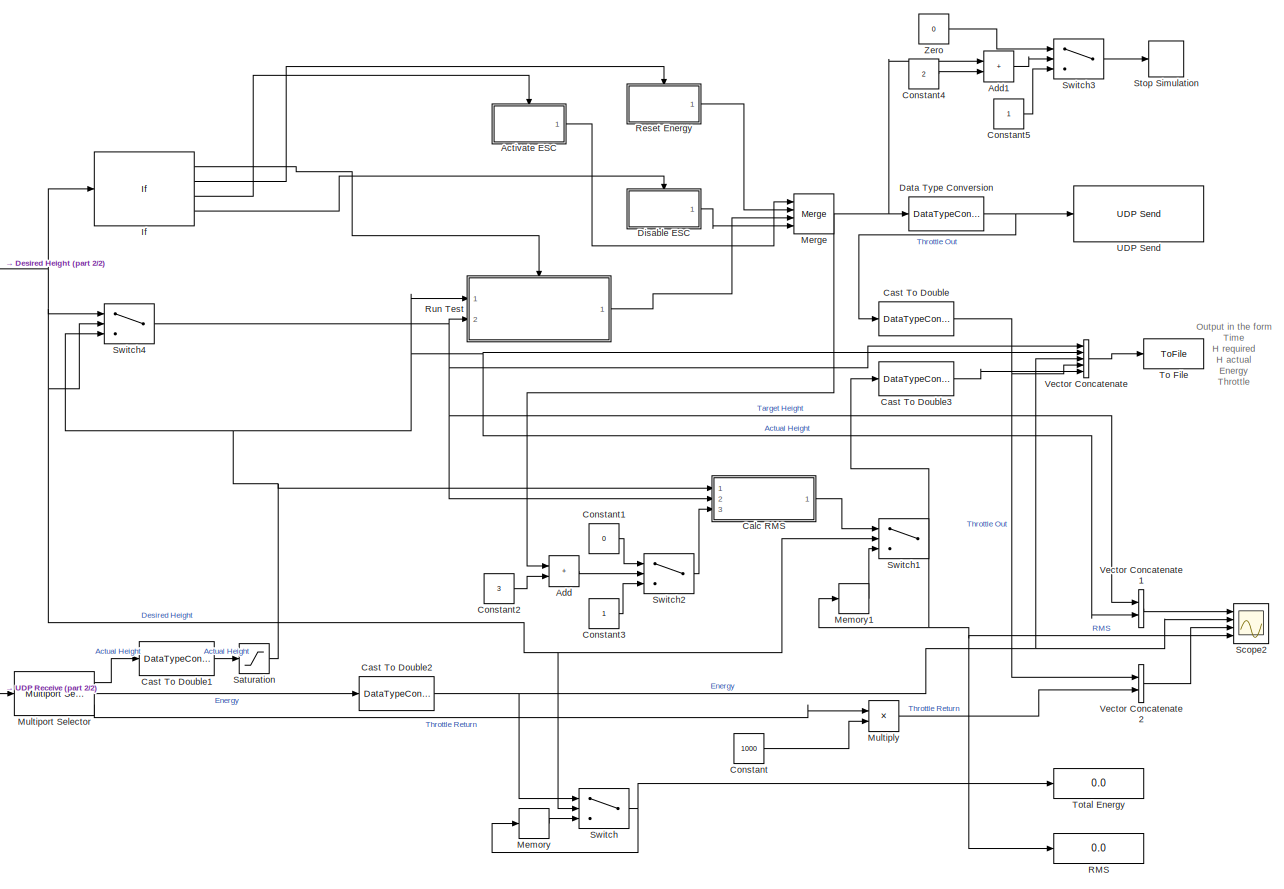
[diagram: root canvas - part 1/2, most of the canvas]
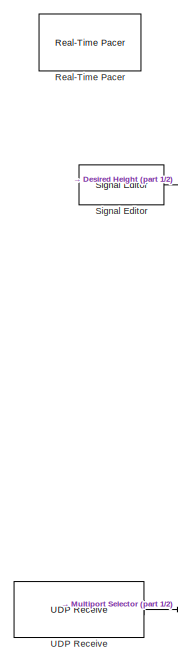
[diagram: root canvas - part 2/2, middle left region]
MODEL slx_79f4b417ced3
KIND model
CONFIG AbsTol = auto
CONFIG EnableMultiTasking = off
CONFIG FixedStep = auto
CONFIG MaxStep = auto
CONFIG MinStep = auto
CONFIG RelTol = 1e-3
CONFIG SampleTimeConstraint = Unconstrained
CONFIG SolverName = VariableStepAuto
CONFIG StartTime = 0.0
CONFIG StopTime = inf
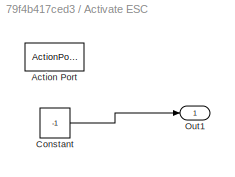
BLOCK [SubSystem] Activate ESC
  Ports = [0, 1, 0, 0, 0, 0, 0, 1]
  RequestExecContextInheritance = off
  TreatAsAtomicUnit = on
BLOCK [ActionPort] Activate ESC/Action Port
  ActionPortLabel = elseif { }
BLOCK [Constant] Activate ESC/Constant
  SampleTime = 0.05
  Value = -1
BLOCK [Outport] Activate ESC/Out1
  VectorParamsAs1DForOutWhenUnconnected = off
BLOCK [Sum] Add
  IconShape = rectangular
  Ports = [2, 1]
BLOCK [Sum] Add1
  IconShape = rectangular
  Ports = [2, 1]
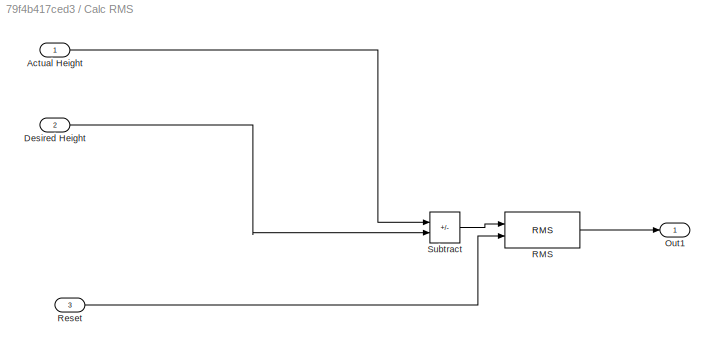
BLOCK [SubSystem] Calc RMS
  Ports = [3, 1]
  RequestExecContextInheritance = off
BLOCK [Inport] Calc RMS/Actual Height
BLOCK [Inport] Calc RMS/Desired Height
  Port = 2
BLOCK [Outport] Calc RMS/Out1
  VectorParamsAs1DForOutWhenUnconnected = off
BLOCK [Reference] Calc RMS/RMS  REF=dspstat3/RMS
  Ports = [2, 1]
  SourceBlock = dspstat3/RMS
  SourceProductBaseCode = DS
  SourceType = RMS
  UserDataPersistent = on
BLOCK [Inport] Calc RMS/Reset
  Port = 3
BLOCK [Sum] Calc RMS/Subtract
  IconShape = rectangular
  Inputs = +-
  Ports = [2, 1]
BLOCK [DataTypeConversion] Cast To Double
  OutDataTypeStr = double
  RndMeth = Floor
  SaturateOnIntegerOverflow = off
BLOCK [DataTypeConversion] Cast To Double1
  OutDataTypeStr = double
  RndMeth = Floor
  SaturateOnIntegerOverflow = off
BLOCK [DataTypeConversion] Cast To Double2
  OutDataTypeStr = double
  RndMeth = Floor
  SaturateOnIntegerOverflow = off
BLOCK [DataTypeConversion] Cast To Double3
  OutDataTypeStr = double
  RndMeth = Floor
  SaturateOnIntegerOverflow = off
BLOCK [Constant] Constant
  Value = 1000
BLOCK [Constant] Constant1
  Value = 0
BLOCK [Constant] Constant2
  Value = 3
BLOCK [Constant] Constant3
BLOCK [Constant] Constant4
  Value = 2
BLOCK [Constant] Constant5
BLOCK [DataTypeConversion] Data Type Conversion
  OutDataTypeStr = int32
  RndMeth = Floor
  SaturateOnIntegerOverflow = off
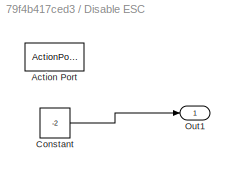
BLOCK [SubSystem] Disable ESC
  Ports = [0, 1, 0, 0, 0, 0, 0, 1]
  RequestExecContextInheritance = off
  TreatAsAtomicUnit = on
BLOCK [ActionPort] Disable ESC/Action Port
  ActionPortLabel = else { }
BLOCK [Constant] Disable ESC/Constant
  SampleTime = 0.05
  Value = -2
BLOCK [Outport] Disable ESC/Out1
  VectorParamsAs1DForOutWhenUnconnected = off
BLOCK [If] If
  ElseIfExpressions = u1 > -100 , u1>-200
  IfExpression = u1 >= 0
  Ports = [1, 4]
BLOCK [Memory] Memory
BLOCK [Memory] Memory1
BLOCK [Merge] Merge
  Inputs = 4
  Ports = [4, 1]
BLOCK [Product] Multiply
  Ports = [2, 1]
BLOCK [Reference] Multiport Selector  REF=dspindex/Multiport
Selector
  Ports = [1, 3]
  SourceBlock = dspindex/Multiport\nSelector
  SourceProductBaseCode = DS
  SourceType = Multiport Selector
BLOCK [Display] RMS
  Decimation = 1
  Ports = [1]
BLOCK [Reference] Real-Time Pacer  REF=realtime_pacer_lib/Real-Time Pacer
  Ports = []
  SourceBlock = realtime_pacer_lib/Real-Time Pacer
  SourceType = RealTime_Pacer
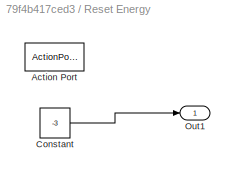
BLOCK [SubSystem] Reset Energy
  Ports = [0, 1, 0, 0, 0, 0, 0, 1]
  RequestExecContextInheritance = off
  TreatAsAtomicUnit = on
BLOCK [ActionPort] Reset Energy/Action Port
  ActionPortLabel = elseif { }
BLOCK [Constant] Reset Energy/Constant
  SampleTime = 0.05
  Value = -3
BLOCK [Outport] Reset Energy/Out1
  VectorParamsAs1DForOutWhenUnconnected = off
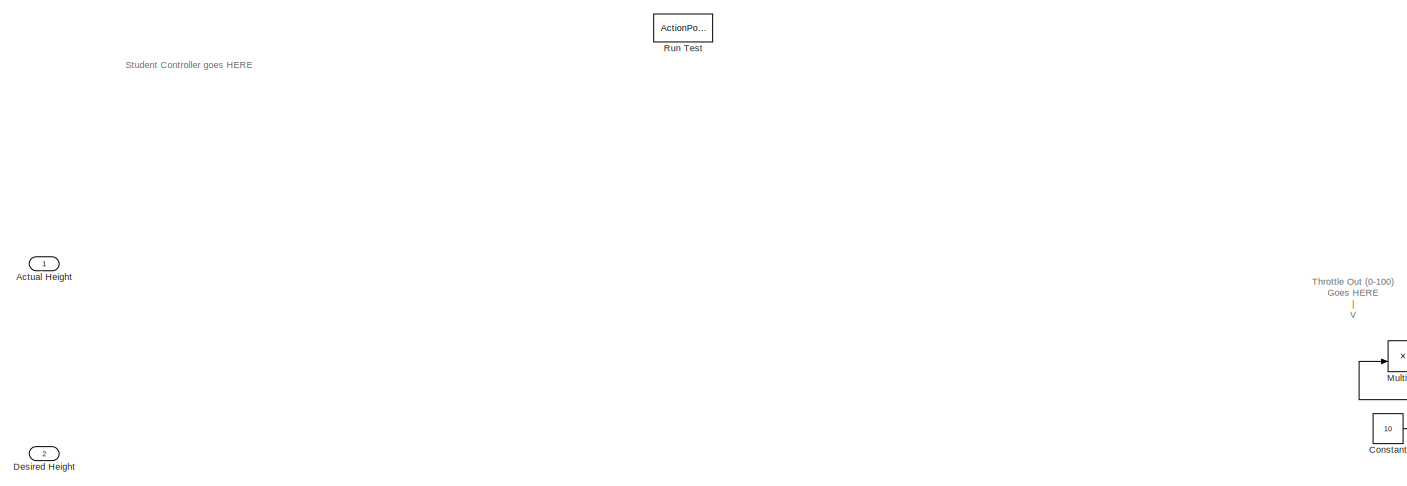
[diagram: Run Test - part 1/2, most of the canvas]
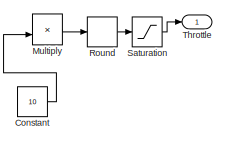
[diagram: Run Test - part 2/2, bottom right region]
BLOCK [SubSystem] Run Test
  Ports = [2, 1, 0, 0, 0, 0, 0, 1]
  RequestExecContextInheritance = off
  TreatAsAtomicUnit = on
BLOCK [Inport] Run Test/Actual Height
BLOCK [Constant] Run Test/Constant
  Value = 10
BLOCK [Inport] Run Test/Desired Height
  Port = 2
BLOCK [Product] Run Test/Multiply
  Ports = [2, 1]
BLOCK [Rounding] Run Test/Round
  Operator = round
BLOCK [ActionPort] Run Test/Run Test
  ActionPortLabel = if { }
BLOCK [Saturate] Run Test/Saturation
  LowerLimit = 0
  UpperLimit = 1000
BLOCK [Outport] Run Test/Throttle 
  VectorParamsAs1DForOutWhenUnconnected = off
BLOCK [Saturate] Saturation
  LowerLimit = 0.1
  UpperLimit = 1.7
BLOCK [Scope] Scope2
  Floating = off
  NumInputPorts = 4
  Ports = [4]
  ScopeSpecificationString = Simulink.scopes.TimeScopeBlockCfg('CurrentConfiguration', extmgr.ConfigurationSet(extmgr.Configuration('Core','General UI',true,'DisplayFullSourceName',true),extmgr.Configuration('Core','Source UI',true),extmgr.Configuration('Sources','WiredSimulink',true,'DataLoggingVariableName','ScopeData2'),extmgr.Configuration('Visuals','Time Domain',true,'SerializedDisplays',{struct('MinYLimReal','-0.1','Max...<+6029ch>
BLOCK [Reference] Signal Editor  REF=SignalEditorBlockLib/Signal Editor
  Ports = [0, 1]
  SourceBlock = SignalEditorBlockLib/Signal Editor
  SourceProductBaseCode = SL
  SourceType = SignalEditor
  UserDataPersistent = on
BLOCK [Stop] Stop Simulation
BLOCK [Switch] Switch
  InputSameDT = off
  SaturateOnIntegerOverflow = off
BLOCK [Switch] Switch1
  InputSameDT = off
  SaturateOnIntegerOverflow = off
BLOCK [Switch] Switch2
  Criteria = u2 ~= 0
  InputSameDT = off
  SaturateOnIntegerOverflow = off
BLOCK [Switch] Switch3
  Criteria = u2 ~= 0
  InputSameDT = off
  SaturateOnIntegerOverflow = off
  ZeroCross = off
BLOCK [Switch] Switch4
  InputSameDT = off
  SaturateOnIntegerOverflow = off
  Threshold = 0.25
BLOCK [ToFile] To File
  Filename = G1_test2.mat
  Ports = [1]
BLOCK [Display] Total Energy
  Decimation = 1
  Ports = [1]
BLOCK [Reference] UDP Receive  REF=instrumentlib/UDP Receive
  Ports = [0, 2]
  SourceBlock = instrumentlib/UDP Receive
  SourceProductBaseCode = IC
  SourceType = UDP Receive
BLOCK [Reference] UDP Send  REF=instrumentlib/UDP Send
  Ports = [1]
  SourceBlock = instrumentlib/UDP Send
  SourceProductBaseCode = IC
  SourceType = UDP Send
BLOCK [Concatenate] Vector Concatenate
  NumInputs = 5
  Ports = [5, 1]
BLOCK [Concatenate] Vector Concatenate1
  Ports = [2, 1]
BLOCK [Concatenate] Vector Concatenate2
  Ports = [2, 1]
BLOCK [Constant] Zero
  OutDataTypeStr = Inherit: Inherit via back propagation
  Value = 0
ANNOTATION (root): Output in the form Time H required H actual Energy Throttle RMS
ANNOTATION Run Test: Student Controller goes HERE
ANNOTATION Run Test: Throttle Out (0-100) Goes HERE | V
LINE Activate ESC/Constant:1 -> Activate ESC/Out1:1
LINE Activate ESC:1 -> Merge:1
LINE Add1:1 -> Switch3:2
LINE Add:1 -> Switch2:2
LINE Calc RMS/Actual Height:1 -> Calc RMS/Subtract:1
LINE Calc RMS/Desired Height:1 -> Calc RMS/Subtract:2
LINE Calc RMS/RMS:1 -> Calc RMS/Out1:1
LINE Calc RMS/Reset:1 -> Calc RMS/RMS:2
LINE Calc RMS/Subtract:1 -> Calc RMS/RMS:1
LINE Calc RMS:1 -> Switch1:1
LINE Cast To Double1:1 -> Saturation:1
NET Cast To Double2:1 -> Scope2:2, Switch:1, Vector Concatenate:3
LINE Cast To Double3:1 -> Vector Concatenate:5
NET Cast To Double:1 -> Vector Concatenate2:1, Vector Concatenate:4
LINE Constant1:1 -> Switch2:1
LINE Constant2:1 -> Add:2
LINE Constant3:1 -> Switch2:3
LINE Constant4:1 -> Add1:2
LINE Constant5:1 -> Switch3:3
LINE Constant:1 -> Multiply:2
NET Data Type Conversion:1 -> Cast To Double:1, UDP Send:1
LINE Disable ESC/Constant:1 -> Disable ESC/Out1:1
LINE Disable ESC:1 -> Merge:4
LINE If:1 -> Run Test:ifaction
LINE If:2 -> Reset Energy:ifaction
LINE If:3 -> Activate ESC:ifaction
LINE If:4 -> Disable ESC:ifaction
LINE Memory1:1 -> Switch1:3
LINE Memory:1 -> Switch:3
NET Merge:1 -> Add1:1, Add:1, Data Type Conversion:1
LINE Multiply:1 -> Vector Concatenate2:2
LINE Multiport Selector:1 -> Cast To Double1:1
LINE Multiport Selector:2 -> Cast To Double2:1
LINE Multiport Selector:3 -> Multiply:1
LINE Reset Energy/Constant:1 -> Reset Energy/Out1:1
LINE Reset Energy:1 -> Merge:2
LINE Run Test/Constant:1 -> Run Test/Multiply:2
LINE Run Test/Multiply:1 -> Run Test/Round:1
LINE Run Test/Round:1 -> Run Test/Saturation:1
LINE Run Test/Saturation:1 -> Run Test/Throttle :1
LINE Run Test:1 -> Merge:3
NET Saturation:1 -> Calc RMS:1, Run Test:1, Switch4:3, Vector Concatenate1:2, Vector Concatenate:2
NET Signal Editor:1 -> If:1, Switch1:2, Switch4:1, Switch4:2, Switch:2
NET Switch1:1 -> Cast To Double3:1, Memory1:1, RMS:1, Scope2:4
LINE Switch2:1 -> Calc RMS:3
LINE Switch3:1 -> Stop Simulation:1
NET Switch4:1 -> Calc RMS:2, Run Test:2, Vector Concatenate1:1, Vector Concatenate:1
NET Switch:1 -> Memory:1, Total Energy:1
LINE UDP Receive:1 -> Multiport Selector:1
LINE Vector Concatenate1:1 -> Scope2:1
LINE Vector Concatenate2:1 -> Scope2:3
LINE Vector Concatenate:1 -> To File:1
LINE Zero:1 -> Switch3:1
note: NET lines group one-source signal fan-out (src -> all destinations, sorted); 1:1 wires keep LINE
